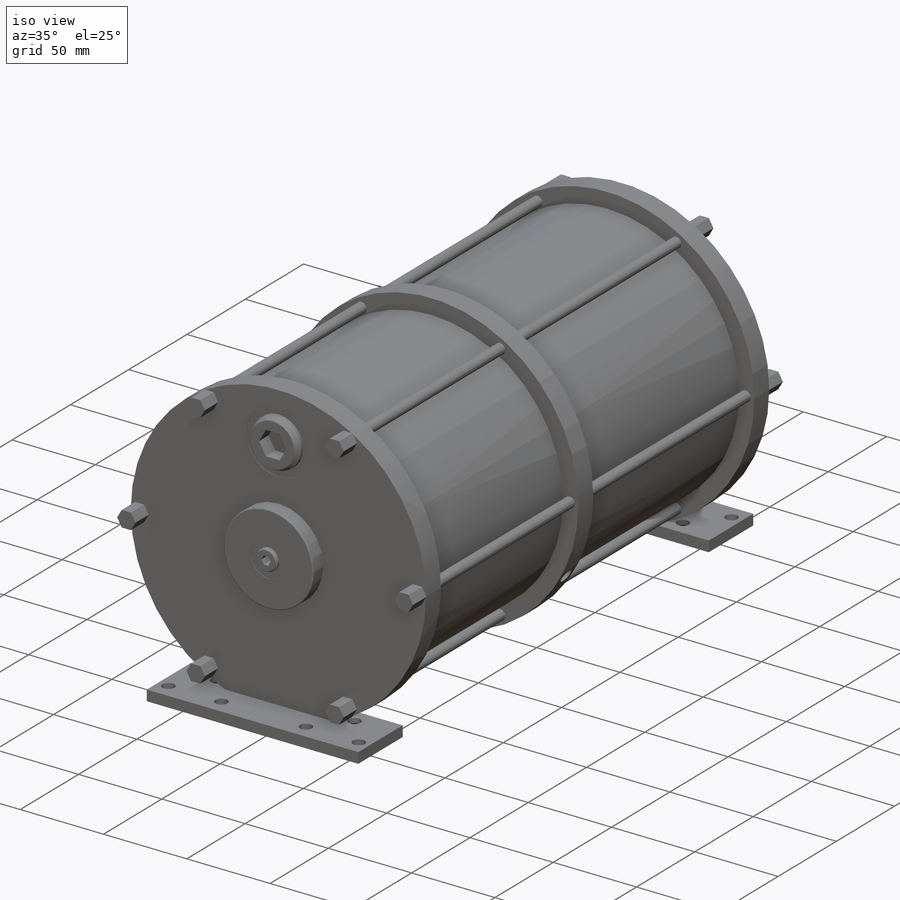
[diagram: iso view]
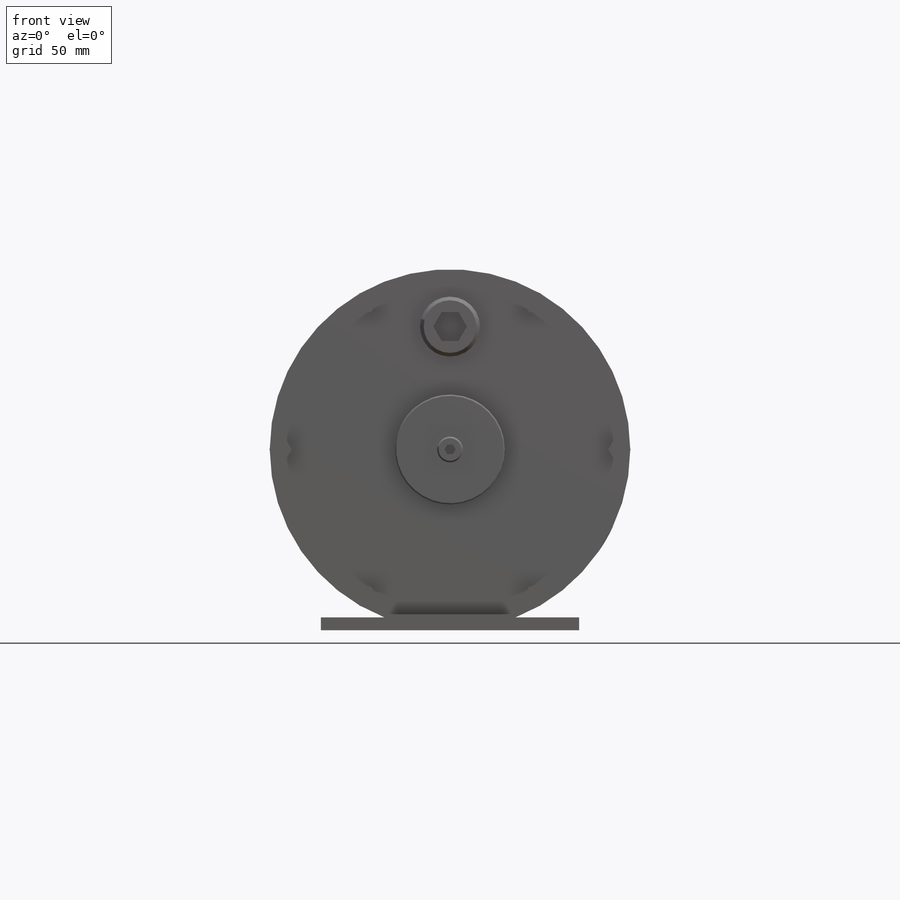
[diagram: front view]
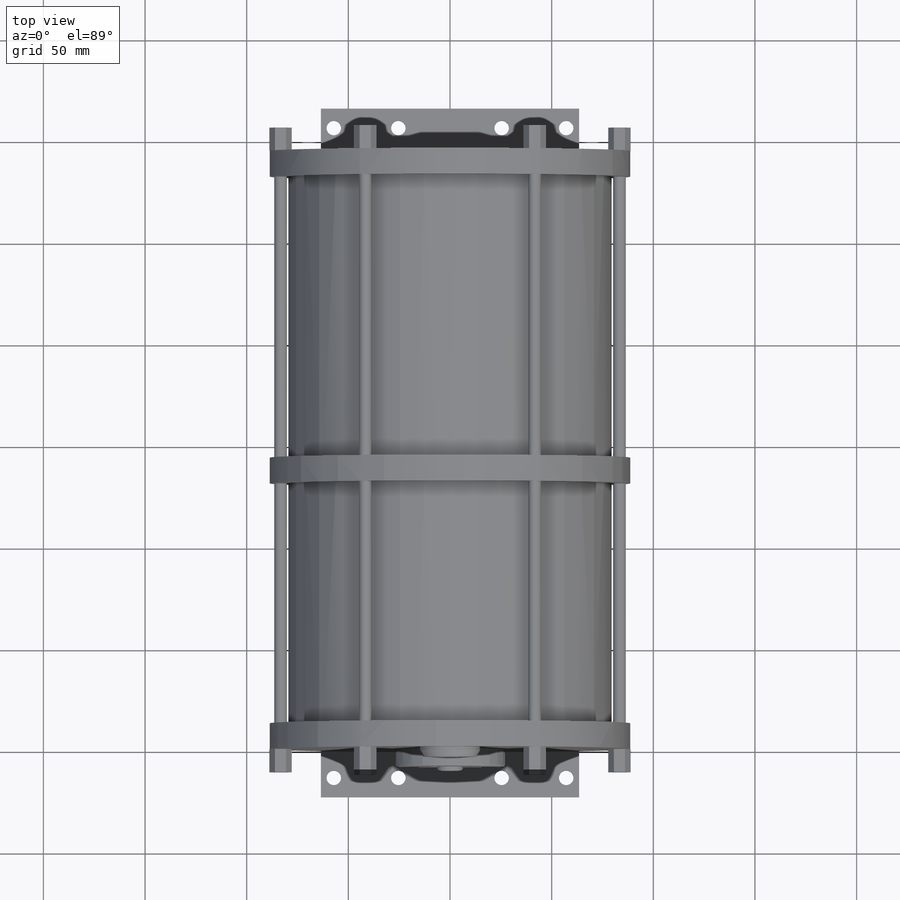
[diagram: top view]
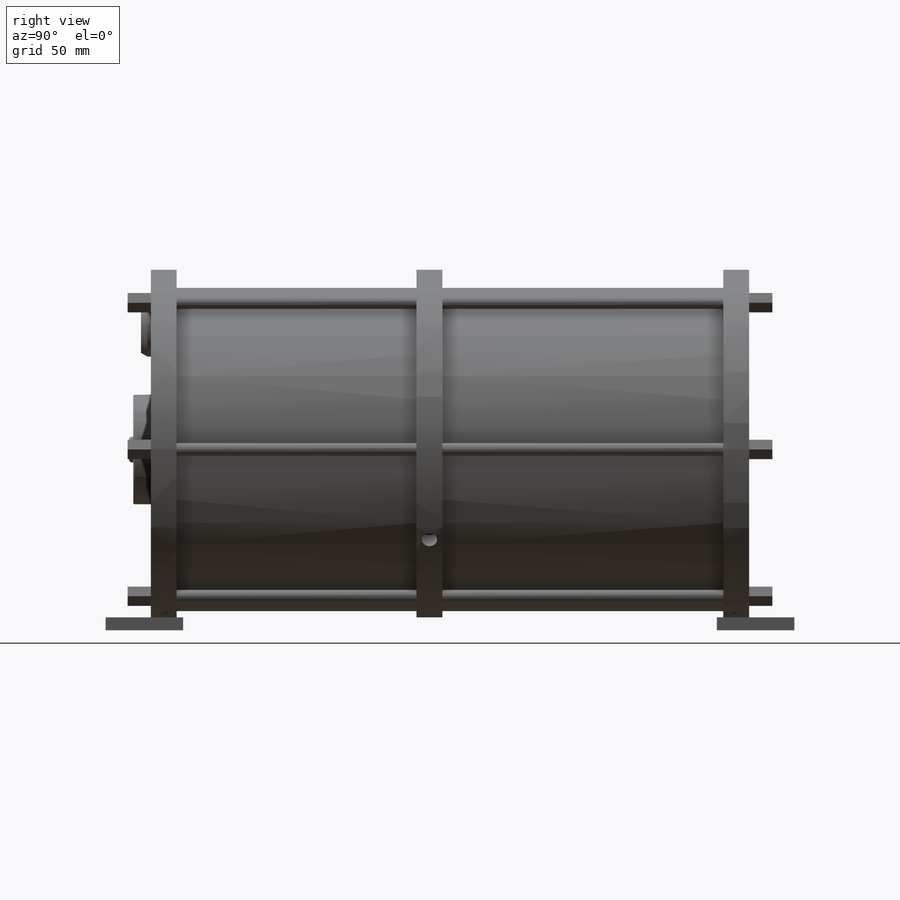
[diagram: right view]
SOLIDWORKS PART (.sldprt)
format: sldprt  version: not decoded by parser v0  size: 934,400 bytes
history: native  units: mm
features: sketch x29, extrude x9, fillet x8, revolve x6, thread x6, plane x5, cut_extrude x5, hole x4, chamfer x2, material x1, mirror x1, cut_revolve x1 (+11 scaffold rows collapsed)
feature tree (88):
  scaffold x11  (default folders/planes/origin — collapsed)
  material  "Material <not specified>"
  sketch  "Sketch1"  dims[D1=177.292mm D2=82.55mm]
  extrude  "Boss-Extrude1"  Depth=12.7mm
  sketch  "Sketch2"  dims[D1=159.004mm]
  extrude  "Boss-Extrude2"  Depth=268.859mm
  sketch  "Sketch3"  dims[D1=177.292mm D2=82.55mm]
  extrude  "Boss-Extrude3"  Depth=12.7mm
  plane  "Plane1"  Offset=124.3076mm
  sketch  "Sketch4"  dims[D1=177.292mm D2=82.55mm]
  extrude  "Boss-Extrude4"  Depth=6.35mm
  sketch  "Sketch5"  dims[D1=6.223mm D2=83.3501mm D3=6.0]
  extrude  "Boss-Extrude5"  [1 undecoded]
  sketch  "Sketch6"  dims[D1=53.9242mm]
  extrude  "Boss-Extrude6"  Depth=8.6614mm
  fillet  "Fillet1"  Radius=0.762mm
  sketch  "Sketch7"  dims[D1=21.082mm]
  cut_extrude  "Cut-Extrude1"  Depth=0.254mm
  sketch  "Sketch8"  dims[D1=2.286mm D2=5.588mm D3=6.35mm D4=1.27mm]
  revolve  "Revolve1"  Angle=360deg
  sketch  "Sketch9"  dims[D1=4.7752mm]
  cut_extrude  "Cut-Extrude2"  Depth=6.35mm
  sketch  "Sketch10"  dims[D1=38.354mm D2=60.452mm]
  cut_extrude  "Cut-Extrude3"  Depth=0.254mm
  fillet  "Axis2"  [1 undecoded]
  sketch  "Sketch11"  dims[D1=5.08mm D2=12.954mm D3=2.032mm D4=14.732mm]
  revolve  "Revolve2"  Angle=360deg
  sketch  "Sketch12"  dims[D1=14.3002mm]
  cut_extrude  "Cut-Extrude4"  Depth=8.128mm
  sketch  "Sketch13"  dims[D1=9.525mm D2=83.3501mm D3=6.0]
  extrude  "Boss-Extrude7"  Depth=11.43mm
  plane  "Plane7"
  mirror  "Mirror1"
  hole  "1/4-28 Tapped Hole1"  Diameter=5.4102mm Depth=7.874mm
  sketch  "Sketch16"  dims[D1=69.85mm D2=50.8mm D3=25.4mm]
  sketch  "Sketch15"  dims[hole-wizard template sketch: 46 standard entries collapsed; hole parameters kept: c15.Tap Drill Dia.=5.4102mm c15.Tap Drill Depth=7.874mm c15.D3=~14.816244mm c15.Drill Angle=118.0deg]
  thread  "Hole Thread1"  Diameter=7.874mm  [1 undecoded]
  thread  "Hole Thread2"  Diameter=7.874mm  [1 undecoded]
  hole  "1/4-20 Tapped Hole1"  Diameter=5.1054mm Depth=19.05mm
  sketch  "Sketch19"  dims[D1=50.8mm D2=25.4mm D3=6.35mm D4=6.35mm]
  sketch  "Sketch18"  dims[hole-wizard template sketch: 50 standard entries collapsed; hole parameters above]
  thread  "Hole Thread3"  Diameter=12.7mm  [1 undecoded]
  thread  "Hole Thread4"  Diameter=12.7mm  [1 undecoded]
  thread  "Hole Thread5"  Diameter=12.7mm  [1 undecoded]
  thread  "Hole Thread6"  Diameter=12.7mm  [1 undecoded]
  fillet  "Axis3"  [1 undecoded]
  plane  "Plane4"
  fillet  "Axis4"  [1 undecoded]
  sketch  "Sketch24"  dims[D1=88.9mm D2=0.508mm D3=3.7465mm]
  cut_revolve  "Cut-Revolve1"  Angle=360deg
  hole  "1/8 NPT Tapped Hole2"  Diameter=8.4328mm Depth=12.7254mm
  sketch  "Sketch26"
  sketch  "Sketch25"  dims[hole-wizard template sketch: 51 standard entries collapsed; hole parameters kept: c13.Tap Drill Depth=12.7254mm c13.Thread Dia.=~10.632872mm c13.D4=~22.362017mm c13.Thread Angle=3.43deg c13.Thread Depth=12.7mm c13.D6=~25.48394mm c13.Drill Angle=118.0deg]
  hole  "1/8 NPT Tapped Hole1"  Diameter=8.4328mm Depth=12.7254mm
  sketch  "Sketch21"  dims[D1=63.5mm]
  sketch  "Sketch22"  dims[hole-wizard template sketch: 51 standard entries collapsed; hole parameters kept: c13.Tap Drill Depth=12.7254mm c13.Thread Dia.=~10.632872mm c13.D4=~22.362017mm c13.Thread Angle=3.43deg c13.Thread Depth=12.7mm c13.D6=~25.48394mm c13.Drill Angle=118.0deg]
  sketch  "Sketch17"  dims[c1.D3=7.1374mm c1.D4=~7.974363mm c1.D1=127.0mm c1.D2=38.1mm c2.D4=19.05mm c2.D5=~22.067011mm c3.D4=19.05mm c3.D5=9.525mm c3.D6=22.225mm c3.D7=15.875mm c3.D8=25.4mm c3.D9=50.8mm c3.D10=82.55mm c3.D11=6.35mm c3.D12=114.3mm c3.D13=6.35mm c3.D14=25.4mm]
  extrude  "Boss-Extrude8"  Depth=6.35mm
  sketch  "Sketch27"  dims[c1.D3=7.1374mm c1.D1=127.0mm c1.D2=38.1mm c1.D4=22.225mm c1.D5=15.875mm c1.D6=25.4mm c1.D7=50.8mm c1.D8=82.55mm c1.D9=6.35mm c2.D1=127.0mm c2.D10=9.525mm c2.D11=19.05mm c3.D1=9.525mm c3.D4=19.05mm c3.D5=6.35mm c3.D6=22.225mm c3.D7=6.35mm c3.D8=114.3mm c3.D9=15.875mm c3.D10=25.4mm c3.D11=50.8mm c3.D12=82.55mm c3.D13=25.4mm c3.D14=127.0mm]
  extrude  "Boss-Extrude9"  Depth=6.35mm
  chamfer  "Chamfer1"  Distance=3.6703mm Angle=45deg
  chamfer  "Chamfer2"  Distance=3.6703mm Angle=45deg
  fillet  "Axis5"  [1 undecoded]
  fillet  "Axis6"  [1 undecoded]
  fillet  "Axis7"  [1 undecoded]
  fillet  "Axis8"  [1 undecoded]
  plane  "Plane5"
  plane  "Plane6"
  sketch  "Sketch28"  dims[c1.D1=6.7437mm c1.D2=4.1148mm c1.D3=3.175mm c1.D4=~2.41935mm c1.D5=15.875mm c2.D4=88.9mm c2.D6=~2.41935mm c2.D7=0.762mm]
  revolve  "Revolve3"  Angle=360deg
  sketch  "Sketch30"  dims[D1=~2.41935mm D2=3.175mm D3=6.7437mm D4=4.1148mm D5=15.875mm D6=88.9mm D7=0.762mm]
  revolve  "Revolve4"  Angle=360deg
  sketch  "Sketch31"  dims[D1=6.7437mm D2=4.1148mm D3=3.175mm D4=~2.41935mm D5=0.762mm D6=88.9mm D7=15.875mm]
  revolve  "Revolve5"  Angle=360deg
  sketch  "Sketch33"  dims[D1=6.7437mm D2=4.1148mm D3=3.175mm D4=~2.41935mm D5=0.762mm D6=15.875mm D7=88.9mm]
  revolve  "Revolve6"  Angle=360deg
  sketch  "Sketch29"  dims[D1=3.9624mm]
  cut_extrude  "Cut-Extrude6"  Depth=2.37744mm
decode coverage: 61 of 71 modeling features carry decoded parameters
note: ~ marks probable driven/reference dimensions
note: 14 parameter values undecoded
summary: no parameter record found for 8 features; Diameter pulled from absorbed wizard sketch
note: suppression state not decoded; provenance and decode notes live in map.json
